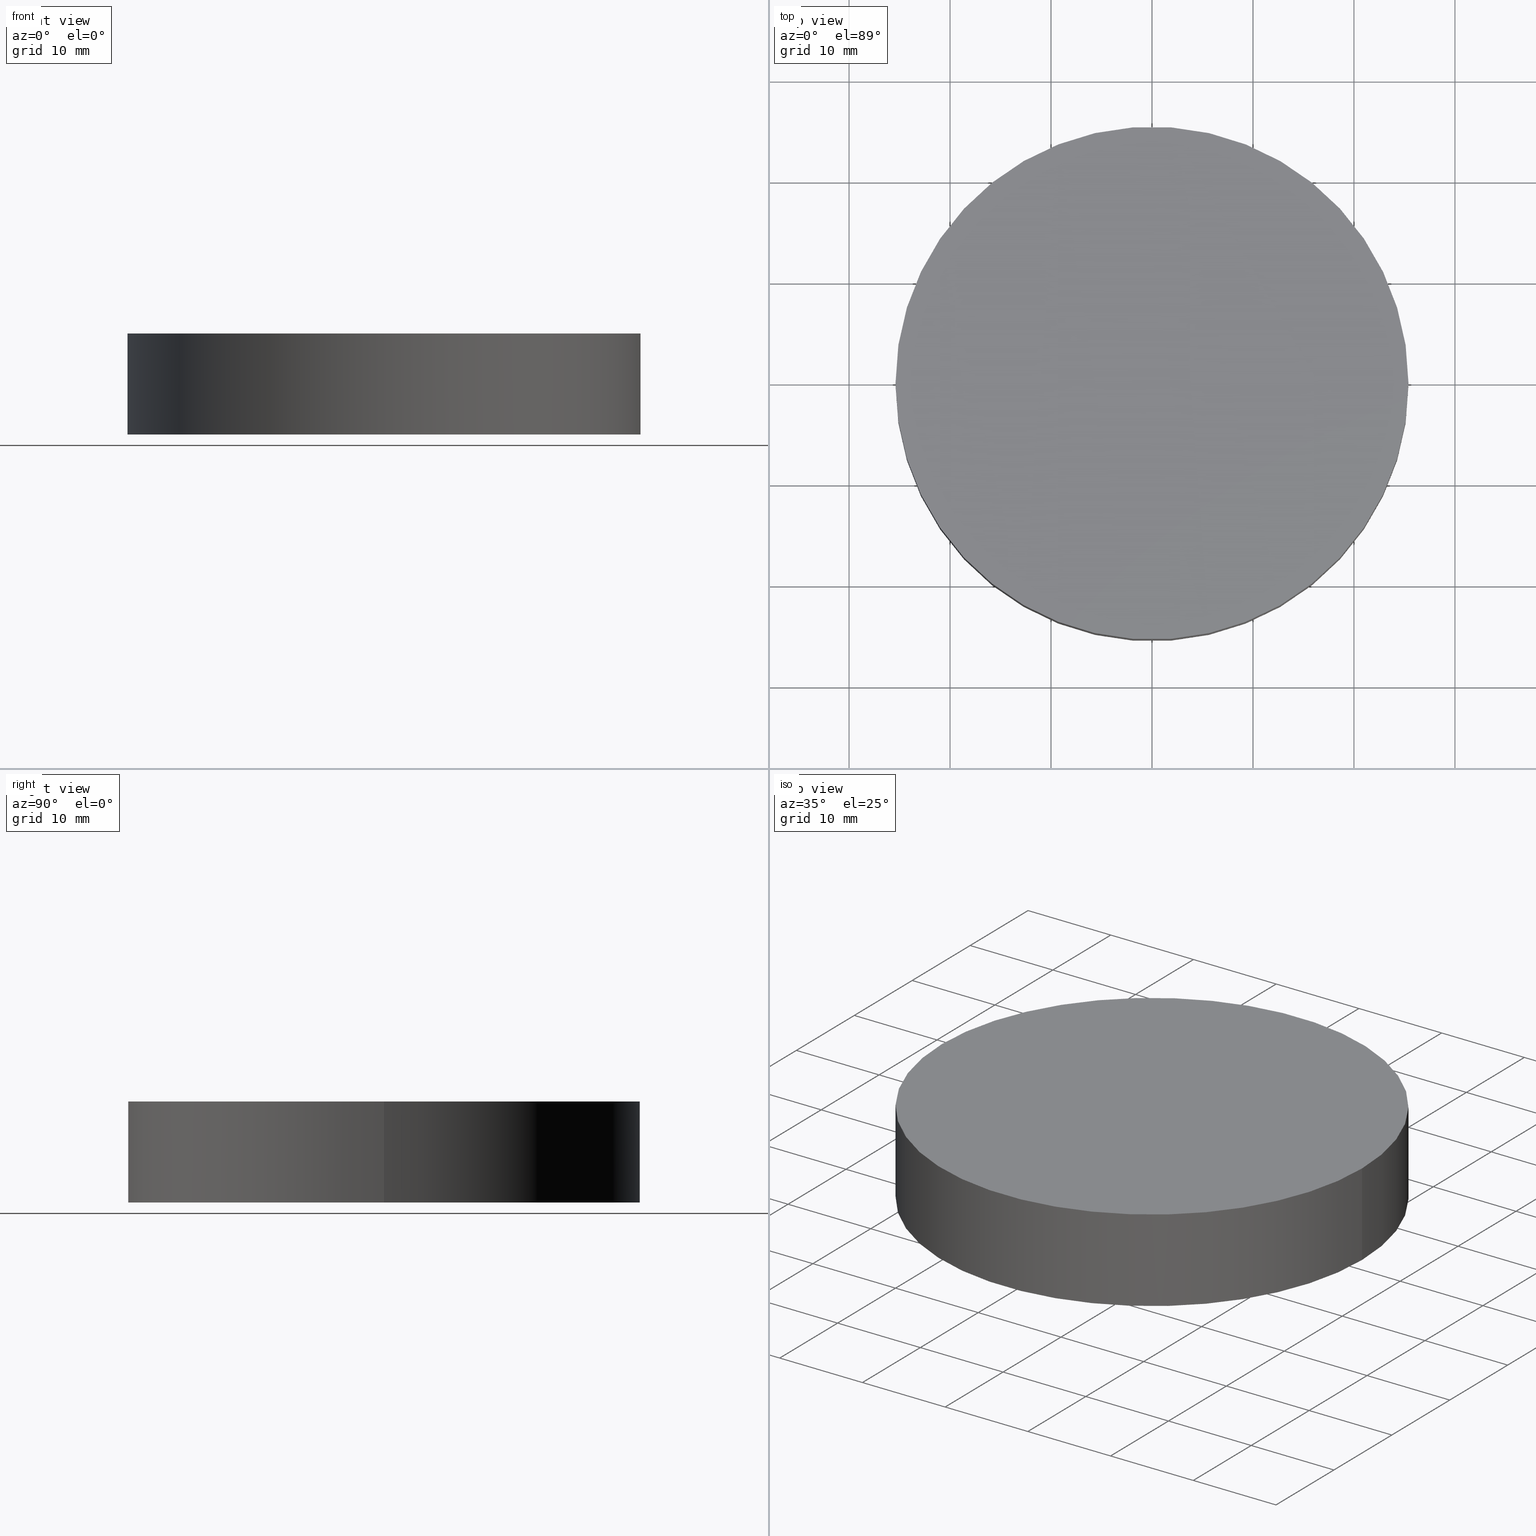
[diagram: canonical four-view strip — front | top / right | iso, engineering-drawing reading convention]
A machine part, canonical four-view strip (front | top / right | iso — engineering-drawing reading convention). The complete STEP part file that produces these views, byte-faithful:
ISO-10303-21;
HEADER;
FILE_DESCRIPTION (( 'STEP AP214' ),
    '1' );
FILE_NAME ('190065.STEP',
    '2019-07-16T03:58:59',
    ( 'user' ),
    ( '΢���й�' ),
    'SwSTEP 2.0',
    'SolidWorks 2016',
    '' );
FILE_SCHEMA (( 'AUTOMOTIVE_DESIGN' ));
ENDSEC;

DATA;
#1 = MECHANICAL_DESIGN_GEOMETRIC_PRESENTATION_REPRESENTATION (  '', ( #129 ), #11 ) ;
#2 = AXIS2_PLACEMENT_3D ( 'NONE', #127, #95, #50 ) ;
#3 = SURFACE_STYLE_USAGE ( .BOTH. , #113 ) ;
#4 = ORIENTED_EDGE ( 'NONE', *, *, #9, .T. ) ;
#5 = PRODUCT_DEFINITION_SHAPE ( 'NONE', 'NONE',  #43 ) ;
#6 = CARTESIAN_POINT ( 'NONE',  ( 0.0000000000000000000, 0.0000000000000000000, 10.00000000000000000 ) ) ;
#7 = DIRECTION ( 'NONE',  ( 1.000000000000000000, 0.0000000000000000000, 0.0000000000000000000 ) ) ;
#8 = ORIENTED_EDGE ( 'NONE', *, *, #85, .F. ) ;
#9 = EDGE_CURVE ( 'NONE', #140, #90, #20, .T. ) ;
#10 = CARTESIAN_POINT ( 'NONE',  ( 0.0000000000000000000, 0.0000000000000000000, 0.0000000000000000000 ) ) ;
#11 =( GEOMETRIC_REPRESENTATION_CONTEXT ( 3 ) GLOBAL_UNCERTAINTY_ASSIGNED_CONTEXT ( ( #130 ) ) GLOBAL_UNIT_ASSIGNED_CONTEXT ( ( #23, #80, #13 ) ) REPRESENTATION_CONTEXT ( 'NONE', 'WORKASPACE' ) );
#12 = COLOUR_RGB ( '',1.000000000000000000, 1.000000000000000000, 1.000000000000000000 ) ;
#13 =( NAMED_UNIT ( * ) SI_UNIT ( $, .STERADIAN. ) SOLID_ANGLE_UNIT ( ) );
#14 =( LENGTH_UNIT ( ) NAMED_UNIT ( * ) SI_UNIT ( .MILLI., .METRE. ) );
#15 = UNCERTAINTY_MEASURE_WITH_UNIT (LENGTH_MEASURE( 1.000000000000000100E-005 ), #14, 'distance_accuracy_value', 'NONE');
#16 = EDGE_CURVE ( 'NONE', #140, #84, #81, .T. ) ;
#17 = SURFACE_STYLE_USAGE ( .BOTH. , #104 ) ;
#18 = FACE_OUTER_BOUND ( 'NONE', #33, .T. ) ;
#19 = DIRECTION ( 'NONE',  ( 1.000000000000000000, 0.0000000000000000000, -0.0000000000000000000 ) ) ;
#20 = LINE ( 'NONE', #96, #47 ) ;
#21 = EDGE_CURVE ( 'NONE', #52, #90, #109, .T. ) ;
#22 = APPLICATION_CONTEXT ( 'automotive_design' ) ;
#23 =( LENGTH_UNIT ( ) NAMED_UNIT ( * ) SI_UNIT ( .MILLI., .METRE. ) );
#24 = CARTESIAN_POINT ( 'NONE',  ( 0.0000000000000000000, 0.0000000000000000000, 0.0000000000000000000 ) ) ;
#25 = SURFACE_STYLE_FILL_AREA ( #62 ) ;
#26 = PLANE ( 'NONE',  #58 ) ;
#27 = ORIENTED_EDGE ( 'NONE', *, *, #9, .F. ) ;
#28 = DIRECTION ( 'NONE',  ( -0.0000000000000000000, -0.0000000000000000000, -1.000000000000000000 ) ) ;
#29 = ADVANCED_BREP_SHAPE_REPRESENTATION ( '190065', ( #107, #40 ), #100 ) ;
#30 = EDGE_CURVE ( 'NONE', #84, #52, #131, .T. ) ;
#31 = COLOUR_RGB ( '',1.000000000000000000, 1.000000000000000000, 1.000000000000000000 ) ;
#32 = AXIS2_PLACEMENT_3D ( 'NONE', #10, #78, #136 ) ;
#33 = EDGE_LOOP ( 'NONE', ( #27, #8, #121, #119 ) ) ;
#34 = FACE_OUTER_BOUND ( 'NONE', #65, .T. ) ;
#35 = CARTESIAN_POINT ( 'NONE',  ( -25.39999999999999900, 0.0000000000000000000, 10.00000000000000000 ) ) ;
#36 = CARTESIAN_POINT ( 'NONE',  ( -25.39999999999999900, 0.0000000000000000000, 0.0000000000000000000 ) ) ;
#37 = ORIENTED_EDGE ( 'NONE', *, *, #85, .T. ) ;
#38 = CARTESIAN_POINT ( 'NONE',  ( 0.0000000000000000000, 0.0000000000000000000, 10.00000000000000000 ) ) ;
#39 = DIRECTION ( 'NONE',  ( 0.0000000000000000000, 0.0000000000000000000, 1.000000000000000000 ) ) ;
#40 = AXIS2_PLACEMENT_3D ( 'NONE', #24, #46, #111 ) ;
#41 = ADVANCED_FACE ( 'NONE', ( #99 ), #128, .T. ) ;
#42 = CYLINDRICAL_SURFACE ( 'NONE', #117, 25.39999999999999900 ) ;
#43 = PRODUCT_DEFINITION ( 'δ֪', '', #53, #94 ) ;
#44 = PRODUCT_CONTEXT ( 'NONE', #22, 'mechanical' ) ;
#45 =( NAMED_UNIT ( * ) PLANE_ANGLE_UNIT ( ) SI_UNIT ( $, .RADIAN. ) );
#46 = DIRECTION ( 'NONE',  ( 0.0000000000000000000, 0.0000000000000000000, 1.000000000000000000 ) ) ;
#47 = VECTOR ( 'NONE', #28, 1000.000000000000000 ) ;
#48 = FILL_AREA_STYLE_COLOUR ( '', #31 ) ;
#49 = AXIS2_PLACEMENT_3D ( 'NONE', #76, #72, #7 ) ;
#50 = DIRECTION ( 'NONE',  ( 1.000000000000000000, 0.0000000000000000000, 0.0000000000000000000 ) ) ;
#51 = DIRECTION ( 'NONE',  ( 0.0000000000000000000, 0.0000000000000000000, 1.000000000000000000 ) ) ;
#52 = VERTEX_POINT ( 'NONE', #36 ) ;
#53 = PRODUCT_DEFINITION_FORMATION_WITH_SPECIFIED_SOURCE ( '�κ�', '', #56, .NOT_KNOWN. ) ;
#54 = ADVANCED_FACE ( 'NONE', ( #34 ), #26, .F. ) ;
#55 = EDGE_CURVE ( 'NONE', #90, #52, #138, .T. ) ;
#56 = PRODUCT ( '190065', '190065', '', ( #44 ) ) ;
#57 = ORIENTED_EDGE ( 'NONE', *, *, #16, .T. ) ;
#58 = AXIS2_PLACEMENT_3D ( 'NONE', #66, #83, #19 ) ;
#59 = FACE_OUTER_BOUND ( 'NONE', #69, .T. ) ;
#60 = EDGE_LOOP ( 'NONE', ( #37, #57 ) ) ;
#61 = DIRECTION ( 'NONE',  ( -0.0000000000000000000, -0.0000000000000000000, -1.000000000000000000 ) ) ;
#62 = FILL_AREA_STYLE ('',( #48 ) ) ;
#63 = PRODUCT_RELATED_PRODUCT_CATEGORY ( 'part', '', ( #56 ) ) ;
#64 = APPLICATION_CONTEXT ( 'automotive_design' ) ;
#65 = EDGE_LOOP ( 'NONE', ( #114, #106 ) ) ;
#66 = CARTESIAN_POINT ( 'NONE',  ( 0.0000000000000000000, 0.0000000000000000000, 0.0000000000000000000 ) ) ;
#67 = DIRECTION ( 'NONE',  ( -1.000000000000000000, 0.0000000000000000000, 0.0000000000000000000 ) ) ;
#68 = AXIS2_PLACEMENT_3D ( 'NONE', #125, #39, #116 ) ;
#69 = EDGE_LOOP ( 'NONE', ( #103, #4, #135, #88 ) ) ;
#70 = CLOSED_SHELL ( 'NONE', ( #137, #108, #41, #54 ) ) ;
#71 = SHAPE_DEFINITION_REPRESENTATION ( #5, #29 ) ;
#72 = DIRECTION ( 'NONE',  ( 0.0000000000000000000, 0.0000000000000000000, 1.000000000000000000 ) ) ;
#73 = STYLED_ITEM ( 'NONE', ( #89 ), #107 ) ;
#74 = APPLICATION_PROTOCOL_DEFINITION ( 'draft international standard', 'automotive_design', 1998, #64 ) ;
#75 = SURFACE_STYLE_FILL_AREA ( #101 ) ;
#76 = CARTESIAN_POINT ( 'NONE',  ( 0.0000000000000000000, 0.0000000000000000000, 0.0000000000000000000 ) ) ;
#77 = VECTOR ( 'NONE', #86, 1000.000000000000000 ) ;
#78 = DIRECTION ( 'NONE',  ( 0.0000000000000000000, 0.0000000000000000000, 1.000000000000000000 ) ) ;
#79 = PRESENTATION_LAYER_ASSIGNMENT (  '', '', ( #73 ) ) ;
#80 =( NAMED_UNIT ( * ) PLANE_ANGLE_UNIT ( ) SI_UNIT ( $, .RADIAN. ) );
#81 = CIRCLE ( 'NONE', #2, 25.39999999999999900 ) ;
#82 =( NAMED_UNIT ( * ) SI_UNIT ( $, .STERADIAN. ) SOLID_ANGLE_UNIT ( ) );
#83 = DIRECTION ( 'NONE',  ( 0.0000000000000000000, 0.0000000000000000000, 1.000000000000000000 ) ) ;
#84 = VERTEX_POINT ( 'NONE', #120 ) ;
#85 = EDGE_CURVE ( 'NONE', #84, #140, #110, .T. ) ;
#86 = DIRECTION ( 'NONE',  ( -0.0000000000000000000, -0.0000000000000000000, -1.000000000000000000 ) ) ;
#87 = MECHANICAL_DESIGN_GEOMETRIC_PRESENTATION_REPRESENTATION (  '', ( #73 ), #93 ) ;
#88 = ORIENTED_EDGE ( 'NONE', *, *, #30, .F. ) ;
#89 = PRESENTATION_STYLE_ASSIGNMENT (( #17 ) ) ;
#90 = VERTEX_POINT ( 'NONE', #134 ) ;
#91 = CARTESIAN_POINT ( 'NONE',  ( 25.39999999999999900, 3.110602869834276900E-015, 10.00000000000000000 ) ) ;
#92 =( LENGTH_UNIT ( ) NAMED_UNIT ( * ) SI_UNIT ( .MILLI., .METRE. ) );
#93 =( GEOMETRIC_REPRESENTATION_CONTEXT ( 3 ) GLOBAL_UNCERTAINTY_ASSIGNED_CONTEXT ( ( #97 ) ) GLOBAL_UNIT_ASSIGNED_CONTEXT ( ( #92, #124, #82 ) ) REPRESENTATION_CONTEXT ( 'NONE', 'WORKASPACE' ) );
#94 = PRODUCT_DEFINITION_CONTEXT ( 'detailed design', #64, 'design' ) ;
#95 = DIRECTION ( 'NONE',  ( 0.0000000000000000000, 0.0000000000000000000, 1.000000000000000000 ) ) ;
#96 = CARTESIAN_POINT ( 'NONE',  ( 25.39999999999999900, 3.110602869834276900E-015, 10.00000000000000000 ) ) ;
#97 = UNCERTAINTY_MEASURE_WITH_UNIT (LENGTH_MEASURE( 1.000000000000000100E-005 ), #92, 'distance_accuracy_value', 'NONE');
#98 = PRESENTATION_STYLE_ASSIGNMENT (( #3 ) ) ;
#99 = FACE_OUTER_BOUND ( 'NONE', #60, .T. ) ;
#100 =( GEOMETRIC_REPRESENTATION_CONTEXT ( 3 ) GLOBAL_UNCERTAINTY_ASSIGNED_CONTEXT ( ( #15 ) ) GLOBAL_UNIT_ASSIGNED_CONTEXT ( ( #14, #45, #132 ) ) REPRESENTATION_CONTEXT ( 'NONE', 'WORKASPACE' ) );
#101 = FILL_AREA_STYLE ('',( #112 ) ) ;
#102 = DIRECTION ( 'NONE',  ( -1.000000000000000000, 0.0000000000000000000, 0.0000000000000000000 ) ) ;
#103 = ORIENTED_EDGE ( 'NONE', *, *, #16, .F. ) ;
#104 = SURFACE_SIDE_STYLE ('',( #25 ) ) ;
#105 = CARTESIAN_POINT ( 'NONE',  ( 0.0000000000000000000, 0.0000000000000000000, 10.00000000000000000 ) ) ;
#106 = ORIENTED_EDGE ( 'NONE', *, *, #55, .F. ) ;
#107 = MANIFOLD_SOLID_BREP ( '͹̨-����1', #70 ) ;
#108 = ADVANCED_FACE ( 'NONE', ( #18 ), #42, .T. ) ;
#109 = CIRCLE ( 'NONE', #32, 25.39999999999999900 ) ;
#110 = CIRCLE ( 'NONE', #68, 25.39999999999999900 ) ;
#111 = DIRECTION ( 'NONE',  ( 1.000000000000000000, 0.0000000000000000000, 0.0000000000000000000 ) ) ;
#112 = FILL_AREA_STYLE_COLOUR ( '', #12 ) ;
#113 = SURFACE_SIDE_STYLE ('',( #75 ) ) ;
#114 = ORIENTED_EDGE ( 'NONE', *, *, #21, .F. ) ;
#115 = DIRECTION ( 'NONE',  ( -0.0000000000000000000, -0.0000000000000000000, -1.000000000000000000 ) ) ;
#116 = DIRECTION ( 'NONE',  ( 1.000000000000000000, 0.0000000000000000000, 0.0000000000000000000 ) ) ;
#117 = AXIS2_PLACEMENT_3D ( 'NONE', #6, #61, #67 ) ;
#118 = DIRECTION ( 'NONE',  ( 1.000000000000000000, 0.0000000000000000000, -0.0000000000000000000 ) ) ;
#119 = ORIENTED_EDGE ( 'NONE', *, *, #21, .T. ) ;
#120 = CARTESIAN_POINT ( 'NONE',  ( -25.39999999999999900, 0.0000000000000000000, 10.00000000000000000 ) ) ;
#121 = ORIENTED_EDGE ( 'NONE', *, *, #30, .T. ) ;
#122 = AXIS2_PLACEMENT_3D ( 'NONE', #38, #115, #102 ) ;
#123 = APPLICATION_PROTOCOL_DEFINITION ( 'draft international standard', 'automotive_design', 1998, #22 ) ;
#124 =( NAMED_UNIT ( * ) PLANE_ANGLE_UNIT ( ) SI_UNIT ( $, .RADIAN. ) );
#125 = CARTESIAN_POINT ( 'NONE',  ( 0.0000000000000000000, 0.0000000000000000000, 10.00000000000000000 ) ) ;
#126 = CYLINDRICAL_SURFACE ( 'NONE', #122, 25.39999999999999900 ) ;
#127 = CARTESIAN_POINT ( 'NONE',  ( 0.0000000000000000000, 0.0000000000000000000, 10.00000000000000000 ) ) ;
#128 = PLANE ( 'NONE',  #139 ) ;
#129 = STYLED_ITEM ( 'NONE', ( #98 ), #29 ) ;
#130 = UNCERTAINTY_MEASURE_WITH_UNIT (LENGTH_MEASURE( 1.000000000000000100E-005 ), #23, 'distance_accuracy_value', 'NONE');
#131 = LINE ( 'NONE', #35, #77 ) ;
#132 =( NAMED_UNIT ( * ) SI_UNIT ( $, .STERADIAN. ) SOLID_ANGLE_UNIT ( ) );
#133 = PRESENTATION_LAYER_ASSIGNMENT (  '', '', ( #129 ) ) ;
#134 = CARTESIAN_POINT ( 'NONE',  ( 25.39999999999999900, 3.110602869834276900E-015, 0.0000000000000000000 ) ) ;
#135 = ORIENTED_EDGE ( 'NONE', *, *, #55, .T. ) ;
#136 = DIRECTION ( 'NONE',  ( 1.000000000000000000, 0.0000000000000000000, 0.0000000000000000000 ) ) ;
#137 = ADVANCED_FACE ( 'NONE', ( #59 ), #126, .T. ) ;
#138 = CIRCLE ( 'NONE', #49, 25.39999999999999900 ) ;
#139 = AXIS2_PLACEMENT_3D ( 'NONE', #105, #51, #118 ) ;
#140 = VERTEX_POINT ( 'NONE', #91 ) ;
ENDSEC;
END-ISO-10303-21;
